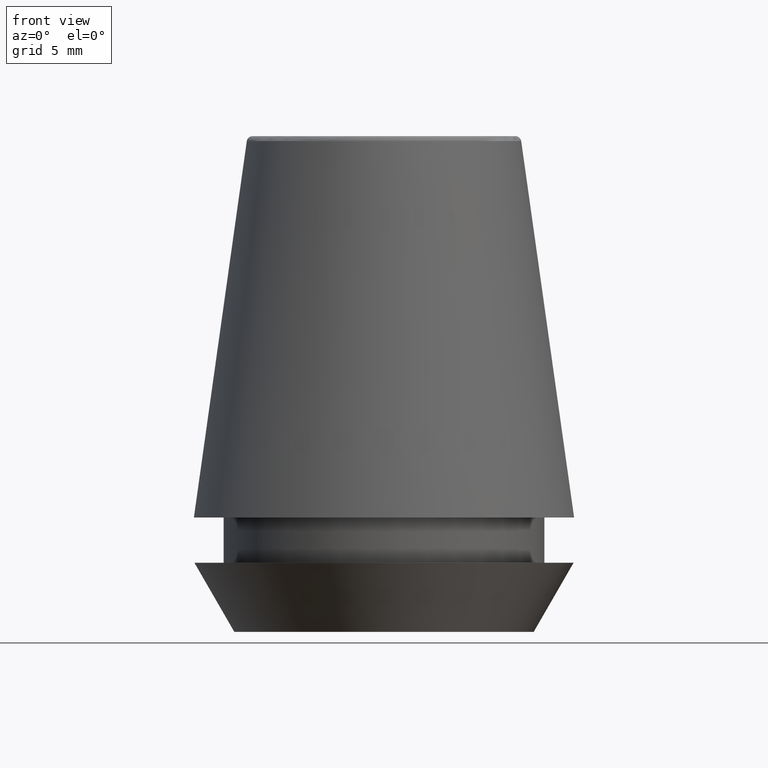
[diagram: clean part render]
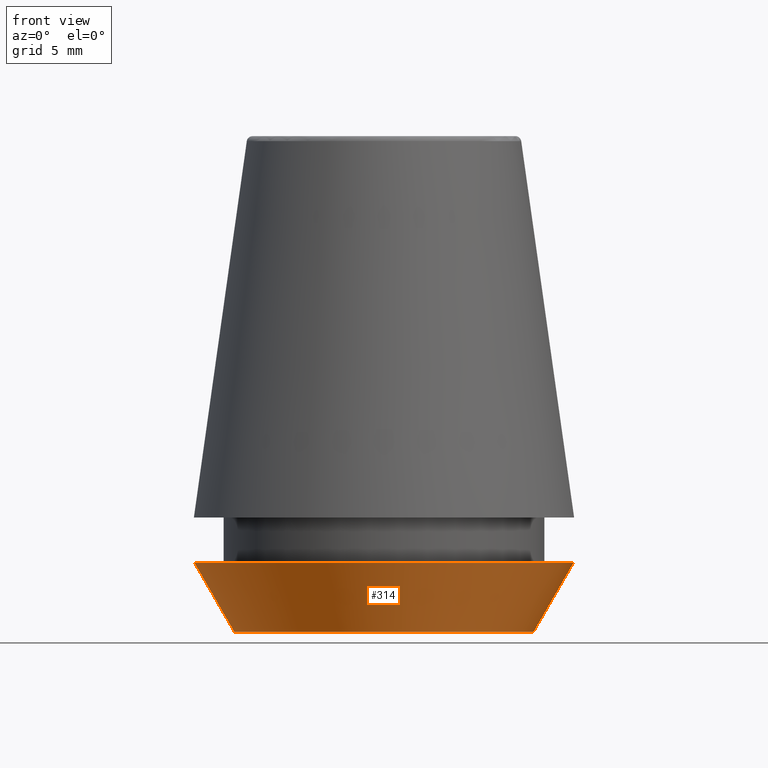
[diagram: same view with one face highlighted and labeled with its STEP entity id]
A machine part, front view. The second image highlights one B-rep face of the part: STEP entity #314.
In plain terms, the highlighted conical surface has half-angle 30 deg.
Its self-contained STEP definition (entity closure, byte-faithful):
#2 = CONICAL_SURFACE ( 'NONE', #323, 10.26217568973925200, 0.5235987755982940400 ) ;
#6 = ORIENTED_EDGE ( 'NONE', *, *, #59, .T. ) ;
#21 = DIRECTION ( 'NONE',  ( -0.4999999999999957800, 6.123233995736714300E-017, 0.8660254037844410400 ) ) ;
#29 = CIRCLE ( 'NONE', #175, 10.26217568973925200 ) ;
#57 = VECTOR ( 'NONE', #21, 1000.000000000000200 ) ;
#59 = EDGE_CURVE ( 'NONE', #139, #154, #29, .T. ) ;
#60 = DIRECTION ( 'NONE',  ( 0.4999999999999957800, 0.0000000000000000000, 0.8660254037844410400 ) ) ;
#67 = VECTOR ( 'NONE', #60, 1000.000000000000200 ) ;
#70 = DIRECTION ( 'NONE',  ( -0.0000000000000000000, -0.0000000000000000000, 1.000000000000000000 ) ) ;
#74 = CARTESIAN_POINT ( 'NONE',  ( -10.26217568973925200, 1.424397449982127500E-015, 0.0000000000000000000 ) ) ;
#93 = ORIENTED_EDGE ( 'NONE', *, *, #384, .F. ) ;
#95 = CARTESIAN_POINT ( 'NONE',  ( 10.26217568973925200, 0.0000000000000000000, 0.0000000000000000000 ) ) ;
#101 = CARTESIAN_POINT ( 'NONE',  ( -13.00000000000000000, 1.592040838891559100E-015, 4.742050807568884500 ) ) ;
#112 = CARTESIAN_POINT ( 'NONE',  ( 13.00000000000000000, 0.0000000000000000000, 4.742050807568884500 ) ) ;
#116 = ORIENTED_EDGE ( 'NONE', *, *, #379, .T. ) ;
#132 = ORIENTED_EDGE ( 'NONE', *, *, #310, .F. ) ;
#139 = VERTEX_POINT ( 'NONE', #74 ) ;
#154 = VERTEX_POINT ( 'NONE', #187 ) ;
#160 = CIRCLE ( 'NONE', #312, 13.00000000000000000 ) ;
#163 = CARTESIAN_POINT ( 'NONE',  ( 0.0000000000000000000, 0.0000000000000000000, 0.0000000000000000000 ) ) ;
#171 = CARTESIAN_POINT ( 'NONE',  ( -10.26217568973925200, 1.256754061072695800E-015, 0.0000000000000000000 ) ) ;
#175 = AXIS2_PLACEMENT_3D ( 'NONE', #163, #243, #190 ) ;
#182 = CARTESIAN_POINT ( 'NONE',  ( 0.0000000000000000000, 0.0000000000000000000, 4.742050807568884500 ) ) ;
#187 = CARTESIAN_POINT ( 'NONE',  ( 10.26217568973925200, 0.0000000000000000000, 0.0000000000000000000 ) ) ;
#190 = DIRECTION ( 'NONE',  ( 1.000000000000000000, 0.0000000000000000000, 0.0000000000000000000 ) ) ;
#208 = EDGE_LOOP ( 'NONE', ( #93, #6, #116, #132 ) ) ;
#209 = CARTESIAN_POINT ( 'NONE',  ( 0.0000000000000000000, 0.0000000000000000000, 0.0000000000000000000 ) ) ;
#215 = DIRECTION ( 'NONE',  ( 1.000000000000000000, 0.0000000000000000000, 0.0000000000000000000 ) ) ;
#222 = VERTEX_POINT ( 'NONE', #101 ) ;
#239 = DIRECTION ( 'NONE',  ( -0.0000000000000000000, -0.0000000000000000000, 1.000000000000000000 ) ) ;
#243 = DIRECTION ( 'NONE',  ( -0.0000000000000000000, -0.0000000000000000000, 1.000000000000000000 ) ) ;
#269 = LINE ( 'NONE', #171, #57 ) ;
#283 = FACE_OUTER_BOUND ( 'NONE', #208, .T. ) ;
#293 = DIRECTION ( 'NONE',  ( 1.000000000000000000, 0.0000000000000000000, 0.0000000000000000000 ) ) ;
#310 = EDGE_CURVE ( 'NONE', #222, #387, #160, .T. ) ;
#312 = AXIS2_PLACEMENT_3D ( 'NONE', #182, #239, #215 ) ;
#314 = ADVANCED_FACE ( 'NONE', ( #283 ), #2, .T. ) ;
#323 = AXIS2_PLACEMENT_3D ( 'NONE', #209, #70, #293 ) ;
#367 = LINE ( 'NONE', #95, #67 ) ;
#379 = EDGE_CURVE ( 'NONE', #154, #387, #367, .T. ) ;
#384 = EDGE_CURVE ( 'NONE', #139, #222, #269, .T. ) ;
#387 = VERTEX_POINT ( 'NONE', #112 ) ;